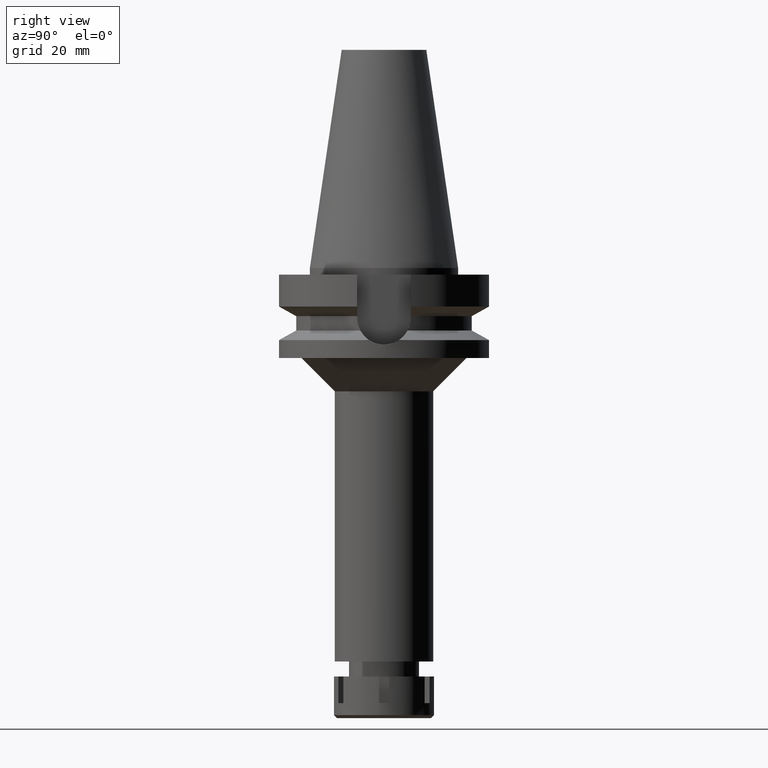
[diagram: clean part render]
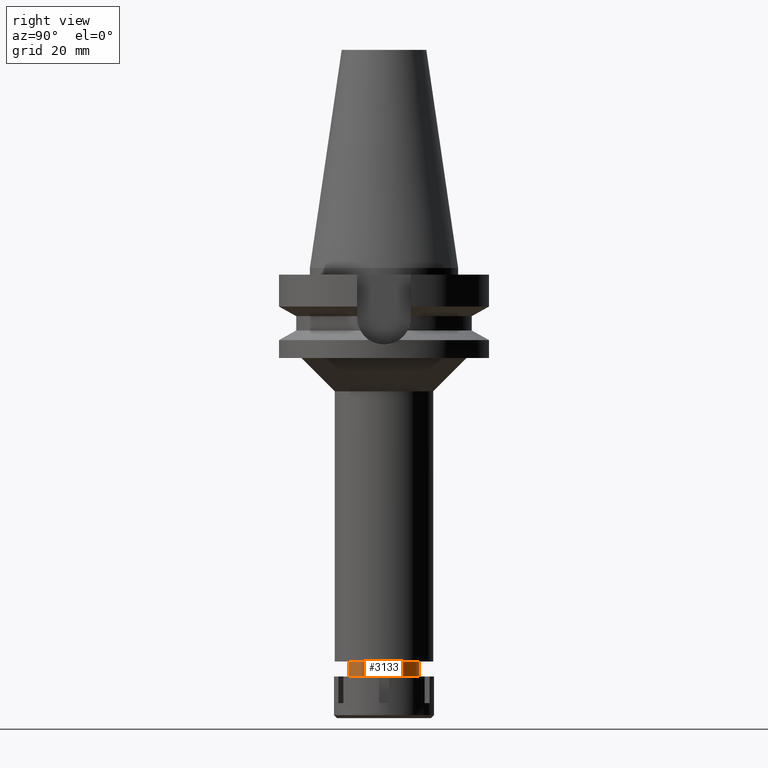
[diagram: same view with one face highlighted and labeled with its STEP entity id]
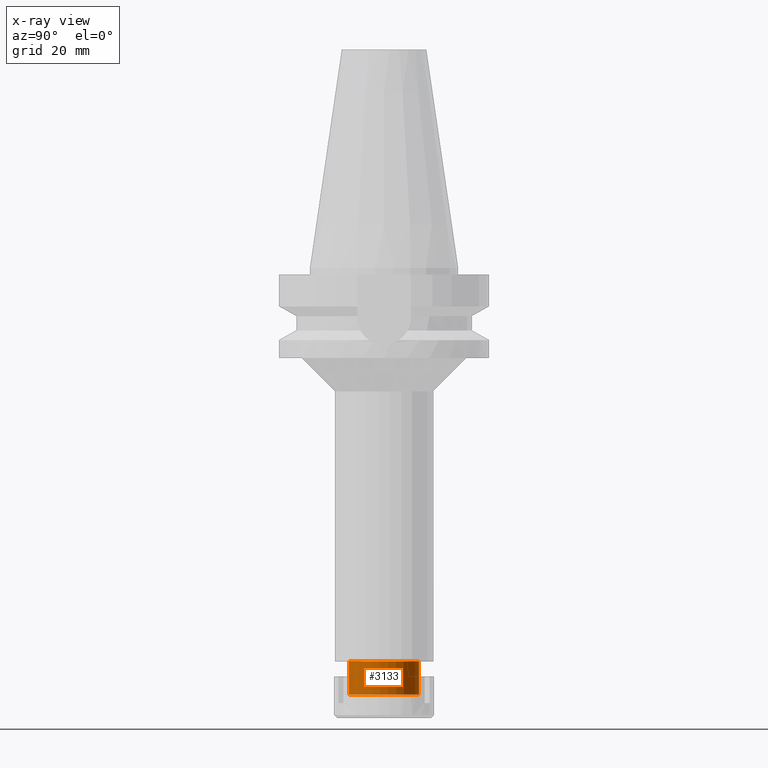
[diagram: x-ray of the same camera — body ghosted, the highlighted face saturated]
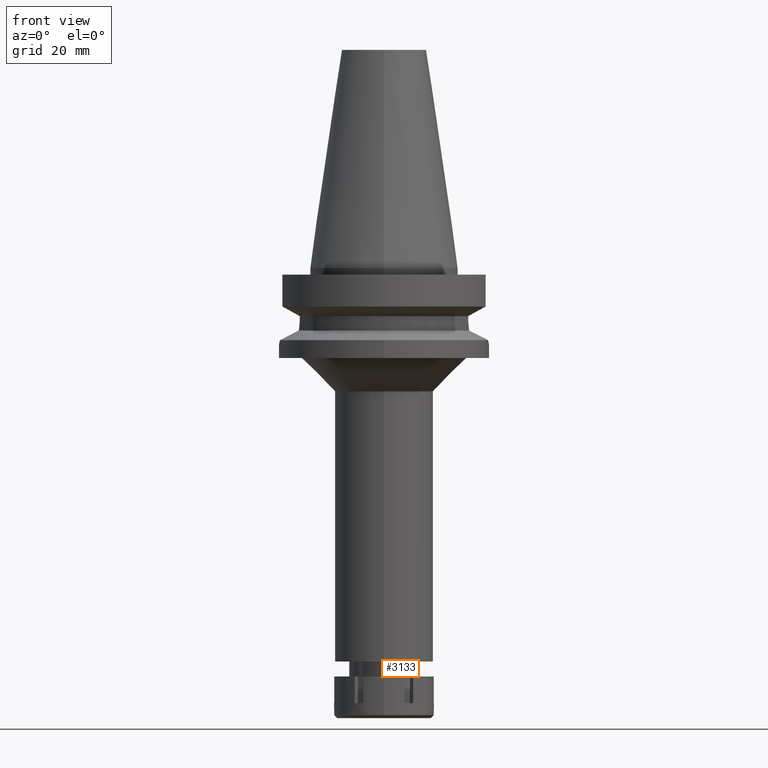
[diagram: same view with one face highlighted and labeled with its STEP entity id]
A machine part, right view. The second image highlights one B-rep face of the part: STEP entity #3133.
The next image is the same camera in x-ray: the body ghosted, the highlighted face saturated — about 0% of this face is hidden behind the body in this view.
A second angle (front view) of the same face is appended — the face is thin or edge-on in the first view.
In plain terms, the highlighted cylindrical surface (edge-blend (fillet) strip) has radius 10.5 mm, axis along (0, 0, -1).
Its self-contained STEP definition (entity closure, byte-faithful):
#181 = DIRECTION ( 'NONE',  ( 0.0000000000000000000, 0.0000000000000000000, -1.000000000000000000 ) ) ;
#259 = CYLINDRICAL_SURFACE ( 'NONE', #1538, 10.50000000000000000 ) ;
#413 = CIRCLE ( 'NONE', #3416, 10.50000000000000000 ) ;
#543 = CARTESIAN_POINT ( 'NONE',  ( 0.0000000000000000000, 10.50000000000000000, -118.0000000000000000 ) ) ;
#562 = EDGE_CURVE ( 'NONE', #565, #1969, #3267, .T. ) ;
#565 = VERTEX_POINT ( 'NONE', #2426 ) ;
#757 = AXIS2_PLACEMENT_3D ( 'NONE', #3182, #1285, #2911 ) ;
#820 = EDGE_CURVE ( 'NONE', #1969, #2313, #2109, .T. ) ;
#1101 = DIRECTION ( 'NONE',  ( 0.0000000000000000000, -1.000000000000000000, 0.0000000000000000000 ) ) ;
#1135 = ORIENTED_EDGE ( 'NONE', *, *, #562, .T. ) ;
#1219 = CARTESIAN_POINT ( 'NONE',  ( 0.0000000000000000000, 10.50000000000000000, -128.0000000000000000 ) ) ;
#1285 = DIRECTION ( 'NONE',  ( 0.0000000000000000000, 0.0000000000000000000, 1.000000000000000000 ) ) ;
#1349 = CARTESIAN_POINT ( 'NONE',  ( 0.0000000000000000000, -10.50000000000000000, -128.0000000000000000 ) ) ;
#1486 = VECTOR ( 'NONE', #3276, 1000.000000000000000 ) ;
#1538 = AXIS2_PLACEMENT_3D ( 'NONE', #2462, #3362, #1101 ) ;
#1681 = LINE ( 'NONE', #543, #1486 ) ;
#1946 = CARTESIAN_POINT ( 'NONE',  ( 0.0000000000000000000, 2.143989151267000102E-14, -118.0000000000000000 ) ) ;
#1969 = VERTEX_POINT ( 'NONE', #1349 ) ;
#1981 = EDGE_CURVE ( 'NONE', #1986, #565, #413, .T. ) ;
#1986 = VERTEX_POINT ( 'NONE', #3310 ) ;
#2109 = CIRCLE ( 'NONE', #757, 10.50000000000000000 ) ;
#2313 = VERTEX_POINT ( 'NONE', #1219 ) ;
#2424 = EDGE_LOOP ( 'NONE', ( #3227, #1135, #3334, #3162 ) ) ;
#2426 = CARTESIAN_POINT ( 'NONE',  ( 0.0000000000000000000, -10.50000000000000000, -118.0000000000000000 ) ) ;
#2462 = CARTESIAN_POINT ( 'NONE',  ( 0.0000000000000000000, 2.143989151267000102E-14, 75.06999999999999318 ) ) ;
#2485 = DIRECTION ( 'NONE',  ( 0.0000000000000000000, 0.0000000000000000000, -1.000000000000000000 ) ) ;
#2629 = VECTOR ( 'NONE', #181, 1000.000000000000000 ) ;
#2725 = CARTESIAN_POINT ( 'NONE',  ( 0.0000000000000000000, -10.50000000000000000, -118.0000000000000000 ) ) ;
#2911 = DIRECTION ( 'NONE',  ( 0.0000000000000000000, -1.000000000000000000, 0.0000000000000000000 ) ) ;
#3022 = FACE_OUTER_BOUND ( 'NONE', #2424, .T. ) ;
#3070 = DIRECTION ( 'NONE',  ( 0.0000000000000000000, 1.000000000000000000, 0.0000000000000000000 ) ) ;
#3133 = ADVANCED_FACE ( 'NONE', ( #3022 ), #259, .T. ) ;
#3162 = ORIENTED_EDGE ( 'NONE', *, *, #3548, .F. ) ;
#3182 = CARTESIAN_POINT ( 'NONE',  ( 0.0000000000000000000, 2.143989151267000102E-14, -128.0000000000000000 ) ) ;
#3227 = ORIENTED_EDGE ( 'NONE', *, *, #1981, .T. ) ;
#3267 = LINE ( 'NONE', #2725, #2629 ) ;
#3276 = DIRECTION ( 'NONE',  ( 0.0000000000000000000, 0.0000000000000000000, -1.000000000000000000 ) ) ;
#3310 = CARTESIAN_POINT ( 'NONE',  ( 0.0000000000000000000, 10.50000000000000000, -118.0000000000000000 ) ) ;
#3334 = ORIENTED_EDGE ( 'NONE', *, *, #820, .T. ) ;
#3362 = DIRECTION ( 'NONE',  ( 0.0000000000000000000, 0.0000000000000000000, -1.000000000000000000 ) ) ;
#3416 = AXIS2_PLACEMENT_3D ( 'NONE', #1946, #2485, #3070 ) ;
#3548 = EDGE_CURVE ( 'NONE', #1986, #2313, #1681, .T. ) ;